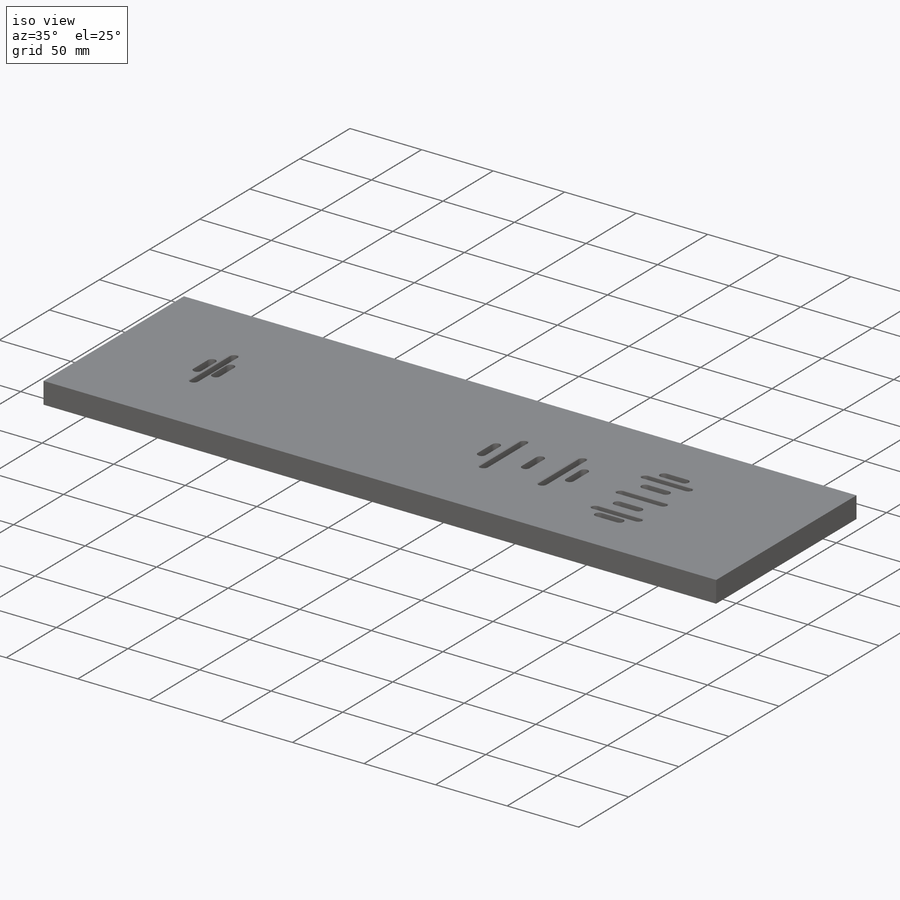
[diagram: iso view]
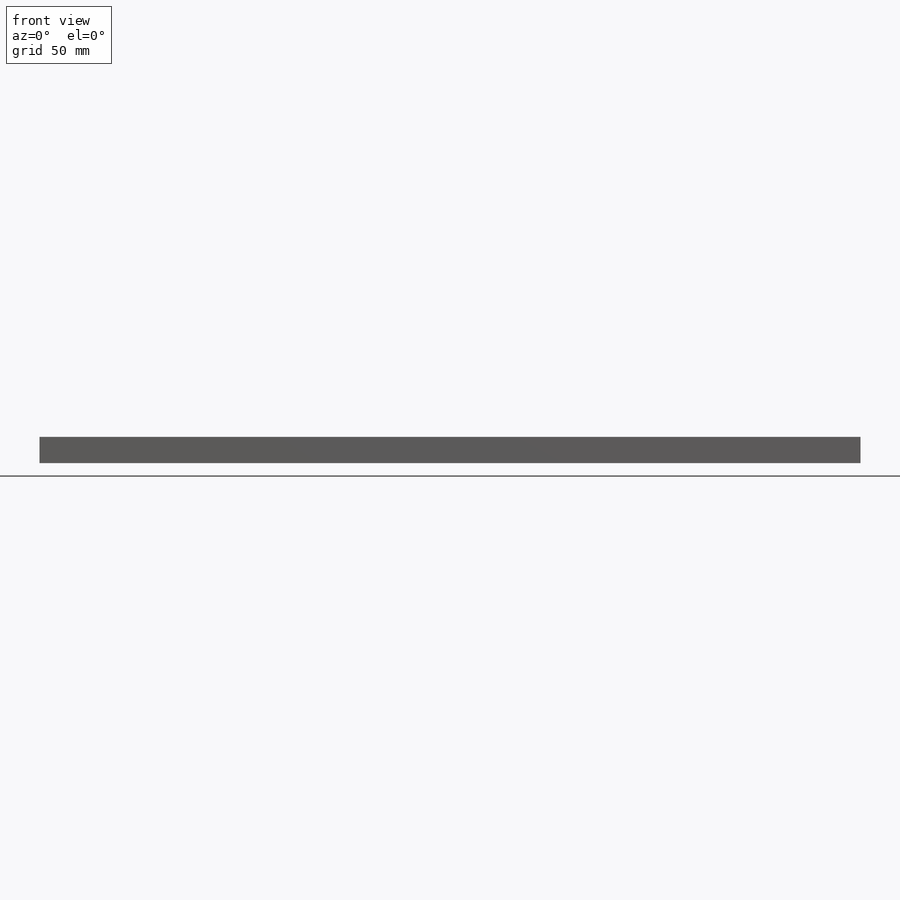
[diagram: front view]
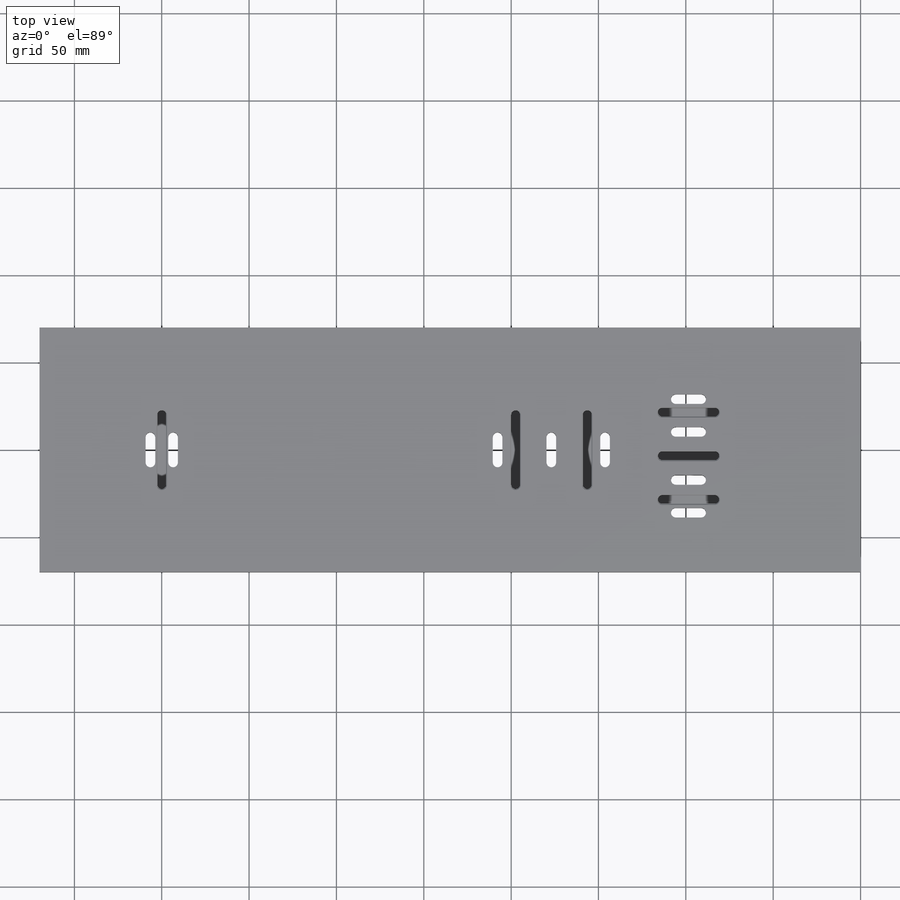
[diagram: top view]
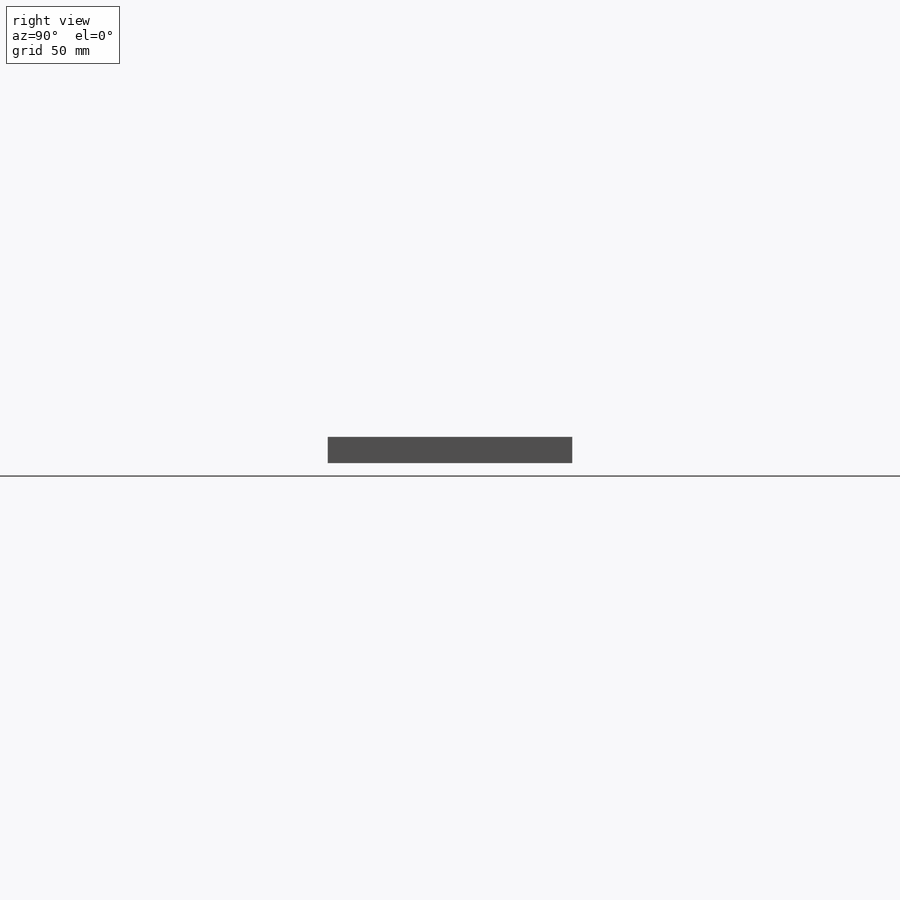
[diagram: right view]
SOLIDWORKS PART (.sldprt)
format: sldprt  version: not decoded by parser v0  size: 415,744 bytes
history: native  units: mm
features: sketch x7, hole x2, material x1, extrude x1, cut_extrude x1, chamfer x1 (+13 scaffold rows collapsed)
feature tree (26):
  scaffold x13  (default folders/planes/origin — collapsed)
  material  "6061 Alloy"
  sketch  "Sketch1"  dims[c1.D1=8.49mm c1.D2=82.0mm c1.D3=34.04mm c1.D4=17.92mm c1.D5=130.0mm c1.D6=20.5mm c1.D7=20.5mm c1.D8=13.75mm c1.D9=13.75mm c2.D8=25.0mm c2.D9=25.0mm c2.D10=0.0mm c2.D5=177.5mm c2.D11=20.5mm c2.D12=28.54mm c2.D3=28.54mm c3.D12=75.0mm c3.D11=30.0mm c3.D5=171.5mm c4.D11=21.0mm c4.D12=75.0mm c4.D13=30.0mm c4.D14=30.0mm c4.D10=26.0mm]
  sketch  "Sketch2"  dims[D1=120.0mm]
  extrude  "Boss-Extrude1"  Depth=15mm
  cut_extrude  "Cut-Extrude1"  Depth=7.5mm
  chamfer  "Chamfer1"  Distance=0.5mm Angle=45deg
  sketch  "Sketch3"  dims[D1=30.75mm D2=30.75mm D3=13.75mm D4=13.75mm D5=18.75mm D6=18.75mm D7=6.5mm D8=6.5mm]
  hole  "CSK SLOT for M5 SFHCS2"  Diameter=5.5mm Depth=15mm
  sketch  "Sketch8"  dims[D1=20.0mm]
  sketch  "Sketch7"  dims[hole-wizard template sketch: 55 standard entries collapsed; hole parameters kept: c17.Thru Hole Depth=15.0mm c17.Near C'Sink Dia.=11.2mm c17.D4=~3.666174mm c17.Near C'Sink Angle=90.0deg]
  hole  "CSK SLOT for M5 SFHCS1"  Diameter=5.5mm Depth=15mm
  sketch  "Sketch10"  dims[D1=20.0mm]
  sketch  "Sketch9"  dims[hole-wizard template sketch: 55 standard entries collapsed; hole parameters kept: c17.Thru Hole Depth=15.0mm c17.Near C'Sink Dia.=11.2mm c17.D4=~3.666174mm c17.Near C'Sink Angle=90.0deg]
decode coverage: 12 of 12 modeling features carry decoded parameters
note: ~ marks probable driven/reference dimensions
note: suppression state not decoded; provenance and decode notes live in map.json
